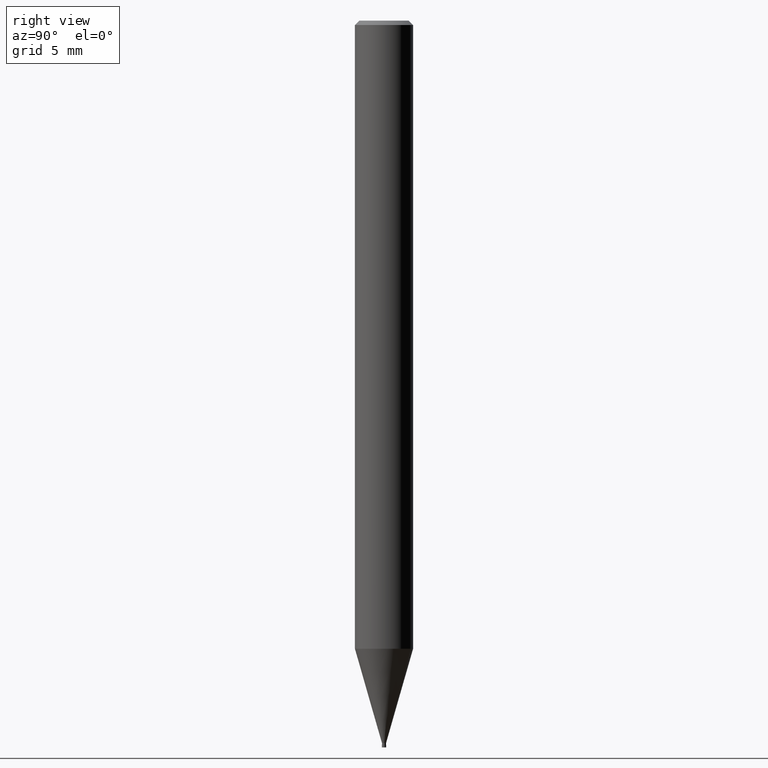
[diagram: clean part render]
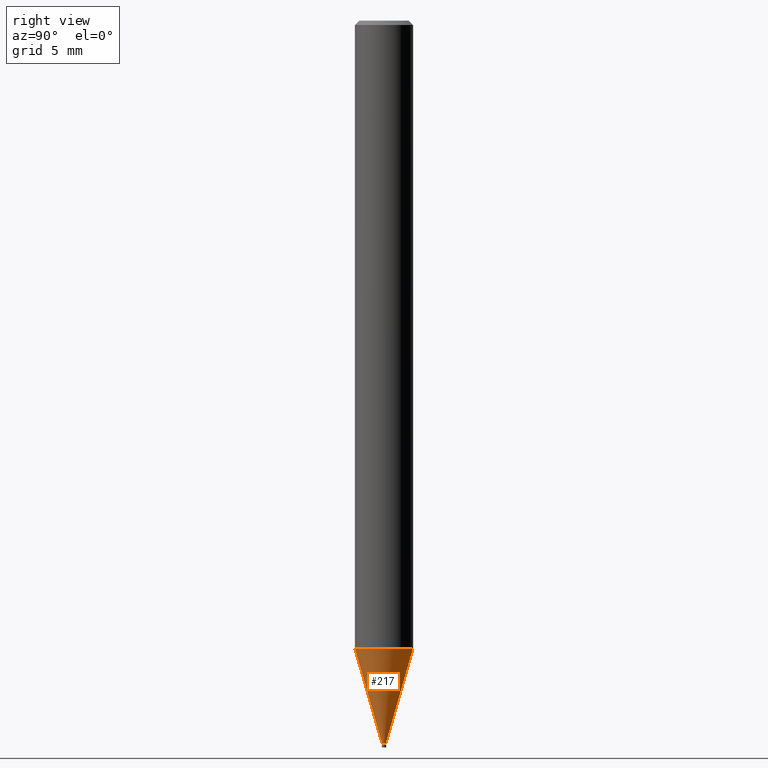
[diagram: same view with one face highlighted and labeled with its STEP entity id]
A machine part, right view. The second image highlights one B-rep face of the part: STEP entity #217.
In plain terms, the highlighted conical surface has half-angle 15.999 deg.
Its self-contained STEP definition (entity closure, byte-faithful):
#181=EDGE_CURVE('',#329,#253,#421,.T.);
#193=VERTEX_POINT('',#434);
#215=EDGE_CURVE('',#193,#253,#458,.T.);
#217=ADVANCED_FACE('',(#460),#461,.T.);
#241=VERTEX_POINT('',#489);
#253=VERTEX_POINT('',#501);
#277=EDGE_CURVE('',#241,#329,#531,.T.);
#289=EDGE_CURVE('',#193,#241,#545,.T.);
#329=VERTEX_POINT('',#592);
#421=LINE('',#690,#691);
#434=CARTESIAN_POINT('',(0.0,1.99995,-43.203));
#458=CIRCLE('',#741,1.99995);
#460=FACE_OUTER_BOUND('',#743,.T.);
#461=CONICAL_SURFACE('',#744,1.06995,0.27923596926092);
#489=CARTESIAN_POINT('',(0.0,0.13995,-49.69));
#501=CARTESIAN_POINT('',(2.44915147732706E-016,-1.99995,-43.203));
#531=CIRCLE('',#831,0.13995);
#545=LINE('',#850,#851);
#592=CARTESIAN_POINT('',(1.71383659217442E-017,-0.13995,-49.69));
#690=CARTESIAN_POINT('',(1.31026756827225E-016,-1.06995,-46.4465));
#691=VECTOR('',#1000,1.0);
#741=AXIS2_PLACEMENT_3D('',#1042,#1043,#1044);
#743=EDGE_LOOP('',(#1046,#1047,#1048,#1049));
#744=AXIS2_PLACEMENT_3D('',#1050,#1051,#1052);
#831=AXIS2_PLACEMENT_3D('',#1135,#1136,#1137);
#850=CARTESIAN_POINT('',(-1.31026756827225E-016,1.06995,-46.4465));
#851=VECTOR('',#1161,1.0);
#1000=DIRECTION('',(3.37527585527933E-017,-0.275621292078393,0.961266301995986));
#1042=CARTESIAN_POINT('',(0.0,0.0,-43.203));
#1043=DIRECTION('',(0.0,0.0,-1.0));
#1044=DIRECTION('',(0.0,1.0,0.0));
#1046=ORIENTED_EDGE('',*,*,#289,.F.);
#1047=ORIENTED_EDGE('',*,*,#215,.T.);
#1048=ORIENTED_EDGE('',*,*,#181,.F.);
#1049=ORIENTED_EDGE('',*,*,#277,.F.);
#1050=CARTESIAN_POINT('',(0.0,0.0,-46.4465));
#1051=DIRECTION('',(-0.0,-0.0,1.0));
#1052=DIRECTION('',(0.0,1.0,0.0));
#1135=CARTESIAN_POINT('',(0.0,0.0,-49.69));
#1136=DIRECTION('',(0.0,0.0,-1.0));
#1137=DIRECTION('',(0.0,1.0,0.0));
#1161=DIRECTION('',(3.37527585527933E-017,-0.275621292078393,-0.961266301995986));